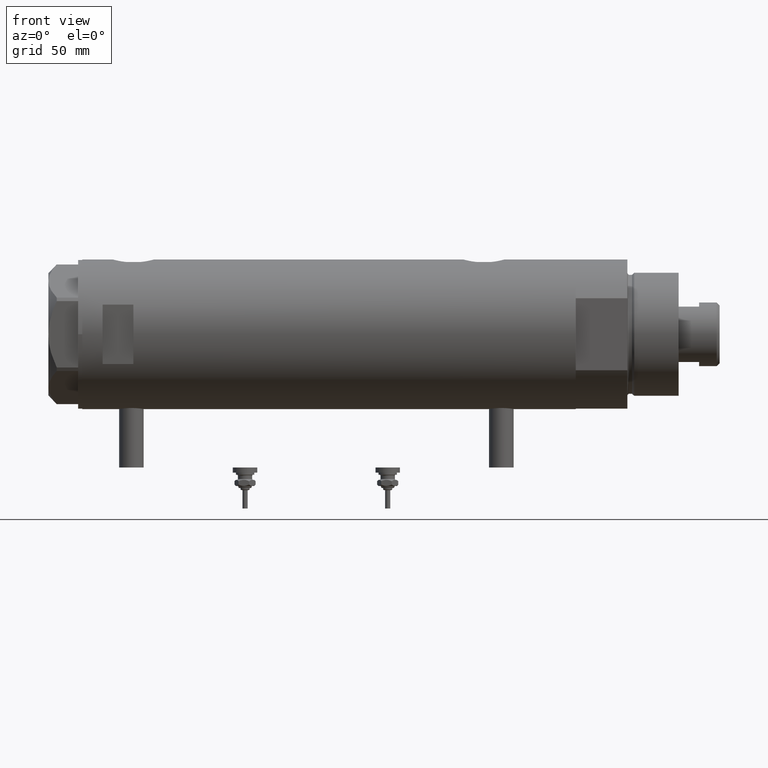
[diagram: clean part render]
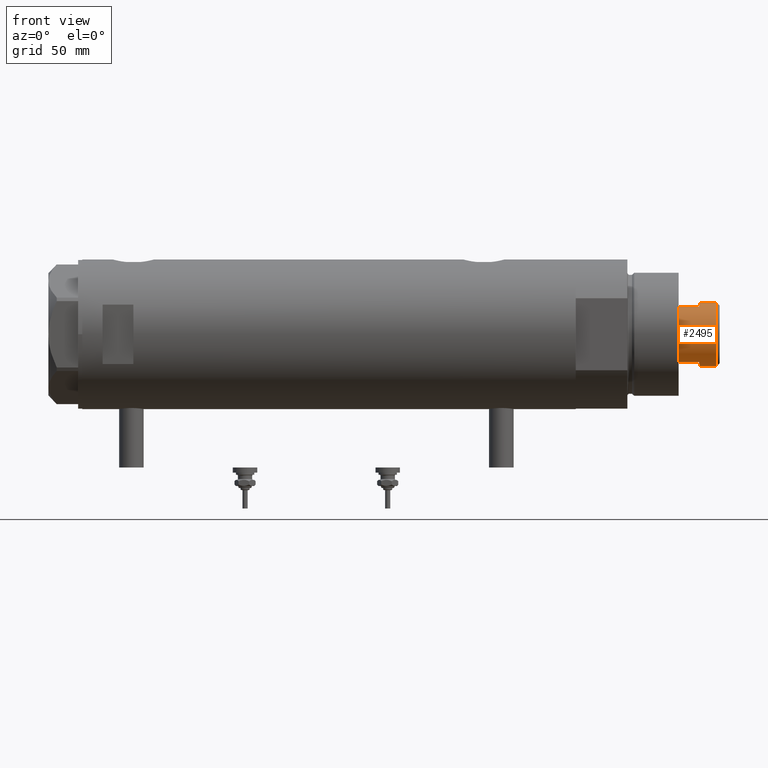
[diagram: same view with one face highlighted and labeled with its STEP entity id]
A machine part, front view. The second image highlights one B-rep face of the part: STEP entity #2495.
In plain terms, the highlighted cylindrical surface (edge-blend (fillet) strip) has radius 15.5 mm, axis along (-1, -0, 0).
Its self-contained STEP definition (entity closure, byte-faithful):
#72 = FACE_OUTER_BOUND ( 'NONE', #5423, .T. ) ;
#175 = CARTESIAN_POINT ( 'NONE',  ( -15.49999999999999822, 0.000000000000000000, 283.5999999999999659 ) ) ;
#439 = CARTESIAN_POINT ( 'NONE',  ( 0.000000000000000000, 0.000000000000000000, 275.0000000000000000 ) ) ;
#570 = AXIS2_PLACEMENT_3D ( 'NONE', #3224, #3286, #5516 ) ;
#623 = EDGE_CURVE ( 'NONE', #3389, #3284, #3688, .T. ) ;
#647 = CARTESIAN_POINT ( 'NONE',  ( -15.49999999999999822, 0.000000000000000000, 275.0000000000000000 ) ) ;
#749 = DIRECTION ( 'NONE',  ( 1.000000000000000000, 0.000000000000000000, 0.000000000000000000 ) ) ;
#814 = EDGE_CURVE ( 'NONE', #5527, #4640, #1122, .T. ) ;
#859 = CARTESIAN_POINT ( 'NONE',  ( 13.48630416385453046, -7.639999999999995239, 275.0000000000000000 ) ) ;
#903 = DIRECTION ( 'NONE',  ( -0.000000000000000000, -0.000000000000000000, -1.000000000000000000 ) ) ;
#1122 = CIRCLE ( 'NONE', #4281, 15.49999999999999822 ) ;
#1171 = DIRECTION ( 'NONE',  ( -0.000000000000000000, -0.000000000000000000, -1.000000000000000000 ) ) ;
#1235 = VECTOR ( 'NONE', #5334, 1000.000000000000000 ) ;
#1465 = DIRECTION ( 'NONE',  ( -1.000000000000000000, 0.000000000000000000, 0.000000000000000000 ) ) ;
#1514 = CARTESIAN_POINT ( 'NONE',  ( -13.48630416385452691, -7.640000000000001457, 275.0000000000000000 ) ) ;
#1648 = DIRECTION ( 'NONE',  ( 1.000000000000000000, 0.000000000000000000, 0.000000000000000000 ) ) ;
#1679 = EDGE_CURVE ( 'NONE', #5527, #3284, #3116, .T. ) ;
#1755 = CARTESIAN_POINT ( 'NONE',  ( -13.48630416385452335, -7.640000000000004121, 275.0000000000000000 ) ) ;
#1803 = VECTOR ( 'NONE', #903, 1000.000000000000000 ) ;
#1818 = DIRECTION ( 'NONE',  ( -0.000000000000000000, -0.000000000000000000, -1.000000000000000000 ) ) ;
#1943 = EDGE_CURVE ( 'NONE', #2808, #4251, #2086, .T. ) ;
#1957 = ORIENTED_EDGE ( 'NONE', *, *, #814, .T. ) ;
#2086 = CIRCLE ( 'NONE', #2183, 15.50000000000000000 ) ;
#2183 = AXIS2_PLACEMENT_3D ( 'NONE', #4973, #4000, #749 ) ;
#2342 = EDGE_CURVE ( 'NONE', #3389, #3016, #5821, .T. ) ;
#2495 = ADVANCED_FACE ( 'NONE', ( #72 ), #5039, .T. ) ;
#2808 = VERTEX_POINT ( 'NONE', #5400 ) ;
#3016 = VERTEX_POINT ( 'NONE', #5232 ) ;
#3061 = CARTESIAN_POINT ( 'NONE',  ( 15.50000000000000178, 1.898202538678397557E-15, 275.0000000000000000 ) ) ;
#3116 = LINE ( 'NONE', #4504, #1803 ) ;
#3224 = CARTESIAN_POINT ( 'NONE',  ( 0.000000000000000000, 0.000000000000000000, 265.0000000000000000 ) ) ;
#3284 = VERTEX_POINT ( 'NONE', #3061 ) ;
#3286 = DIRECTION ( 'NONE',  ( 0.000000000000000000, 0.000000000000000000, 1.000000000000000000 ) ) ;
#3389 = VERTEX_POINT ( 'NONE', #3766 ) ;
#3442 = CIRCLE ( 'NONE', #570, 15.49999999999999822 ) ;
#3593 = ORIENTED_EDGE ( 'NONE', *, *, #1943, .T. ) ;
#3688 = CIRCLE ( 'NONE', #4465, 15.50000000000000000 ) ;
#3766 = CARTESIAN_POINT ( 'NONE',  ( 13.48630416385453046, -7.639999999999995239, 275.0000000000000000 ) ) ;
#3854 = ORIENTED_EDGE ( 'NONE', *, *, #2342, .F. ) ;
#3906 = CARTESIAN_POINT ( 'NONE',  ( -13.48630416385452513, -7.639999999999921521, 265.0000000000000000 ) ) ;
#3952 = ORIENTED_EDGE ( 'NONE', *, *, #623, .T. ) ;
#4000 = DIRECTION ( 'NONE',  ( 0.000000000000000000, 0.000000000000000000, 1.000000000000000000 ) ) ;
#4021 = CARTESIAN_POINT ( 'NONE',  ( 0.000000000000000000, 0.000000000000000000, 283.5999999999999659 ) ) ;
#4035 = VERTEX_POINT ( 'NONE', #3906 ) ;
#4140 = DIRECTION ( 'NONE',  ( 1.000000000000000000, 0.000000000000000000, 0.000000000000000000 ) ) ;
#4165 = CARTESIAN_POINT ( 'NONE',  ( 0.000000000000000000, 0.000000000000000000, 275.0000000000000000 ) ) ;
#4194 = LINE ( 'NONE', #1514, #4412 ) ;
#4251 = VERTEX_POINT ( 'NONE', #1755 ) ;
#4281 = AXIS2_PLACEMENT_3D ( 'NONE', #4021, #5877, #1648 ) ;
#4282 = ORIENTED_EDGE ( 'NONE', *, *, #5699, .T. ) ;
#4330 = LINE ( 'NONE', #647, #4597 ) ;
#4353 = EDGE_CURVE ( 'NONE', #4035, #3016, #3442, .T. ) ;
#4412 = VECTOR ( 'NONE', #4682, 1000.000000000000000 ) ;
#4465 = AXIS2_PLACEMENT_3D ( 'NONE', #439, #5910, #4140 ) ;
#4480 = AXIS2_PLACEMENT_3D ( 'NONE', #4165, #1818, #1465 ) ;
#4504 = CARTESIAN_POINT ( 'NONE',  ( 15.49999999999999822, 1.898202538678397163E-15, 275.0000000000000000 ) ) ;
#4584 = ORIENTED_EDGE ( 'NONE', *, *, #1679, .F. ) ;
#4597 = VECTOR ( 'NONE', #1171, 1000.000000000000000 ) ;
#4640 = VERTEX_POINT ( 'NONE', #175 ) ;
#4682 = DIRECTION ( 'NONE',  ( -0.000000000000000000, -0.000000000000000000, -1.000000000000000000 ) ) ;
#4905 = CARTESIAN_POINT ( 'NONE',  ( 15.49999999999999822, 1.898202538678397163E-15, 283.5999999999999659 ) ) ;
#4973 = CARTESIAN_POINT ( 'NONE',  ( 0.000000000000000000, 0.000000000000000000, 275.0000000000000000 ) ) ;
#5039 = CYLINDRICAL_SURFACE ( 'NONE', #4480, 15.49999999999999822 ) ;
#5122 = EDGE_CURVE ( 'NONE', #4640, #2808, #4330, .T. ) ;
#5191 = ORIENTED_EDGE ( 'NONE', *, *, #4353, .T. ) ;
#5232 = CARTESIAN_POINT ( 'NONE',  ( 13.48630416385452691, -7.639999999999914415, 265.0000000000000000 ) ) ;
#5283 = ORIENTED_EDGE ( 'NONE', *, *, #5122, .T. ) ;
#5334 = DIRECTION ( 'NONE',  ( -0.000000000000000000, -0.000000000000000000, -1.000000000000000000 ) ) ;
#5400 = CARTESIAN_POINT ( 'NONE',  ( -15.50000000000000178, 0.000000000000000000, 275.0000000000000000 ) ) ;
#5423 = EDGE_LOOP ( 'NONE', ( #4584, #1957, #5283, #3593, #4282, #5191, #3854, #3952 ) ) ;
#5516 = DIRECTION ( 'NONE',  ( 1.000000000000000000, 0.000000000000000000, 0.000000000000000000 ) ) ;
#5527 = VERTEX_POINT ( 'NONE', #4905 ) ;
#5699 = EDGE_CURVE ( 'NONE', #4251, #4035, #4194, .T. ) ;
#5821 = LINE ( 'NONE', #859, #1235 ) ;
#5877 = DIRECTION ( 'NONE',  ( 0.000000000000000000, 0.000000000000000000, -1.000000000000000000 ) ) ;
#5910 = DIRECTION ( 'NONE',  ( 0.000000000000000000, 0.000000000000000000, 1.000000000000000000 ) ) ;